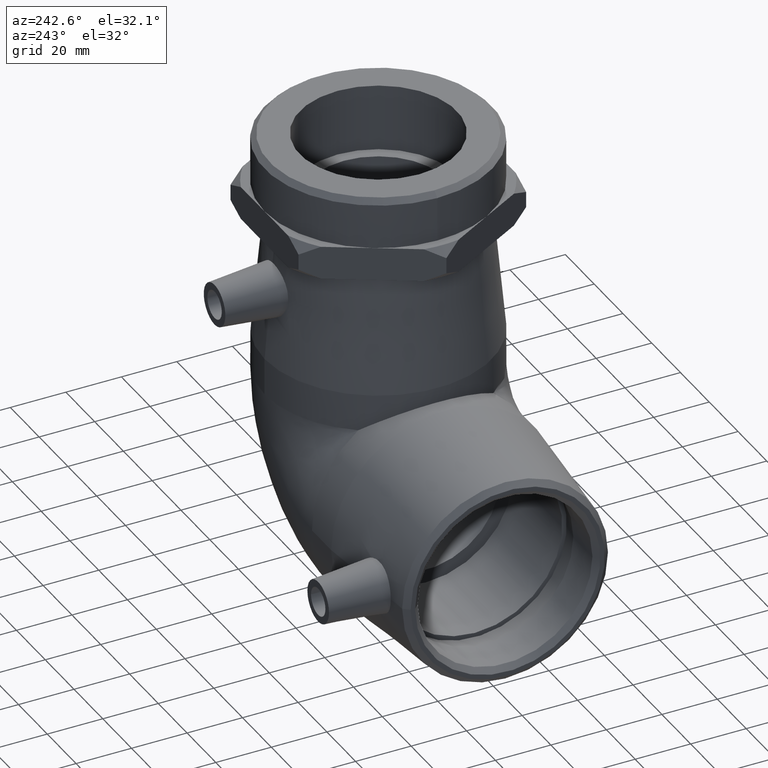
[diagram: clean part render]
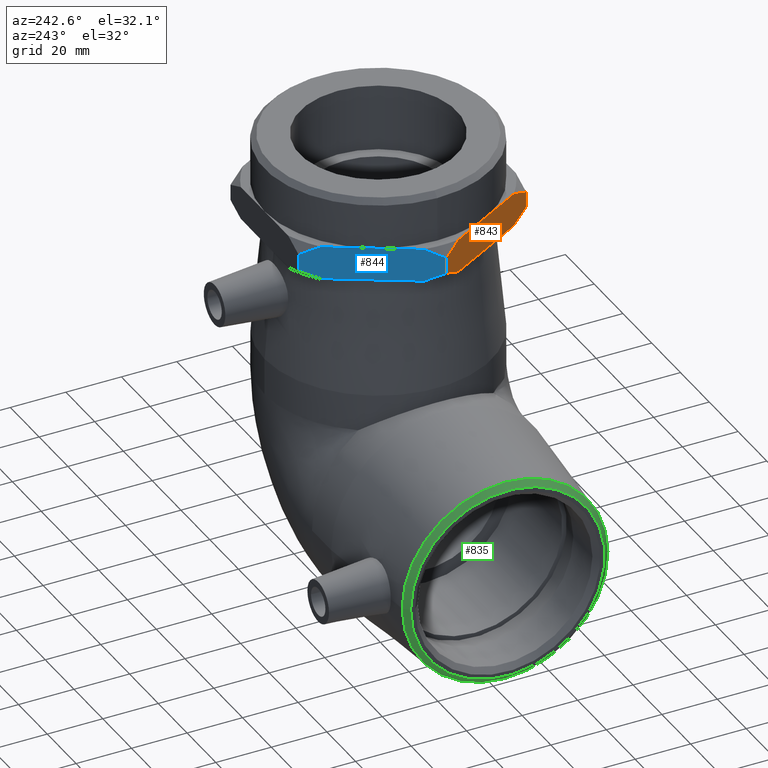
[diagram: same view with three faces highlighted in distinct colors, each labeled with its STEP entity id]
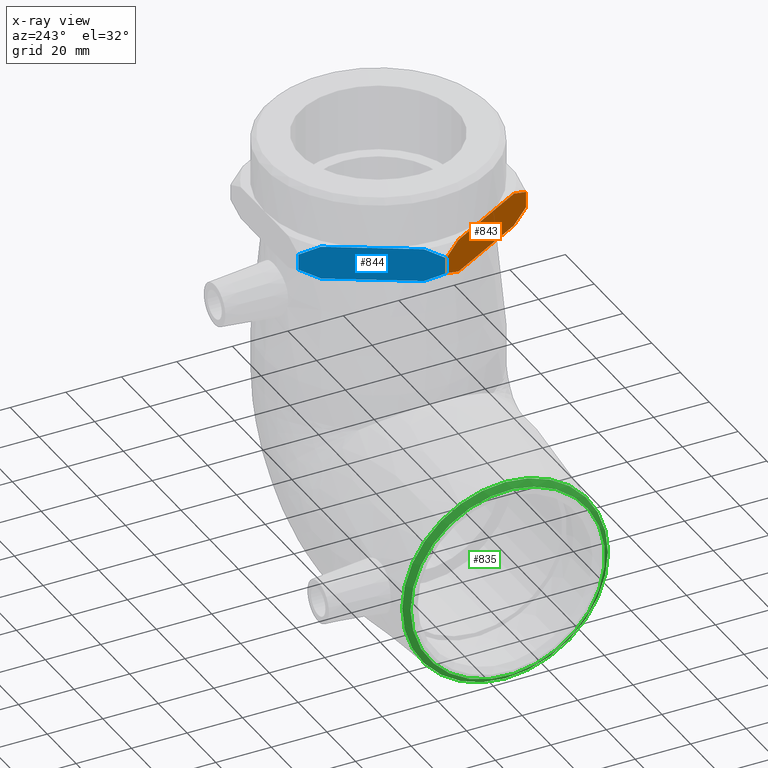
[diagram: x-ray of the same camera — body ghosted, the three highlighted faces saturated]
A machine part, auxiliary view with three faces highlighted in distinct colors.
The next image is the same camera in x-ray (body ghosted, the three faces saturated) — at least one of them is partly hidden behind the body in this view.
Their STEP definitions:

[orange] entity #843 — the highlighted planar face has unit normal (-0.8661, -0.4999, 0).
#72=LINE('',#1400,#96);
#80=LINE('',#1421,#104);
#88=LINE('',#1542,#112);
#89=LINE('',#1543,#113);
#90=LINE('',#1544,#114);
#96=VECTOR('',#1053,16.4923202465228);
#104=VECTOR('',#1077,32.9846404930455);
#112=VECTOR('',#1143,5.69999999999999);
#113=VECTOR('',#1144,5.69999999999999);
#114=VECTOR('',#1145,16.4923202465228);
#129=PLANE('',#943);
#176=FACE_OUTER_BOUND('',#254,.T.);
#254=EDGE_LOOP('',(#683,#684,#685,#686,#687,#688,#689,#690,#691));
#378=(
BOUNDED_CURVE()
B_SPLINE_CURVE(2,(#1318,#1319,#1320),.UNSPECIFIED.,.F.,.F.)
B_SPLINE_CURVE_WITH_KNOTS((3,3),(0.,0.784248755107226),.UNSPECIFIED.)
CURVE()
GEOMETRIC_REPRESENTATION_ITEM()
RATIONAL_B_SPLINE_CURVE((1.,1.00308982109676,1.))
REPRESENTATION_ITEM('')
);
#380=(
BOUNDED_CURVE()
B_SPLINE_CURVE(2,(#1328,#1329,#1330),.UNSPECIFIED.,.F.,.F.)
B_SPLINE_CURVE_WITH_KNOTS((3,3),(0.,0.784248755107227),.UNSPECIFIED.)
CURVE()
GEOMETRIC_REPRESENTATION_ITEM()
RATIONAL_B_SPLINE_CURVE((1.,1.00308982109688,1.))
REPRESENTATION_ITEM('')
);
#390=(
BOUNDED_CURVE()
B_SPLINE_CURVE(2,(#1384,#1385,#1386),.UNSPECIFIED.,.F.,.F.)
B_SPLINE_CURVE_WITH_KNOTS((3,3),(0.,0.784248755107226),.UNSPECIFIED.)
CURVE()
GEOMETRIC_REPRESENTATION_ITEM()
RATIONAL_B_SPLINE_CURVE((1.,1.00308982109699,1.))
REPRESENTATION_ITEM('')
);
#392=(
BOUNDED_CURVE()
B_SPLINE_CURVE(2,(#1394,#1395,#1396),.UNSPECIFIED.,.F.,.F.)
B_SPLINE_CURVE_WITH_KNOTS((3,3),(0.,0.784248755107225),.UNSPECIFIED.)
CURVE()
GEOMETRIC_REPRESENTATION_ITEM()
RATIONAL_B_SPLINE_CURVE((1.,1.00308982109703,1.))
REPRESENTATION_ITEM('')
);
#406=VERTEX_POINT('',#1312);
#407=VERTEX_POINT('',#1316);
#408=VERTEX_POINT('',#1322);
#410=VERTEX_POINT('',#1327);
#424=VERTEX_POINT('',#1378);
#425=VERTEX_POINT('',#1382);
#426=VERTEX_POINT('',#1388);
#428=VERTEX_POINT('',#1393);
#429=VERTEX_POINT('',#1399);
#488=EDGE_CURVE('',#406,#407,#378,.T.);
#490=EDGE_CURVE('',#410,#408,#380,.T.);
#506=EDGE_CURVE('',#424,#425,#390,.T.);
#508=EDGE_CURVE('',#428,#426,#392,.T.);
#510=EDGE_CURVE('',#410,#429,#72,.T.);
#522=EDGE_CURVE('',#425,#428,#80,.T.);
#548=EDGE_CURVE('',#424,#408,#88,.T.);
#549=EDGE_CURVE('',#426,#406,#89,.T.);
#550=EDGE_CURVE('',#429,#407,#90,.T.);
#683=ORIENTED_EDGE('',*,*,#490,.T.);
#684=ORIENTED_EDGE('',*,*,#548,.F.);
#685=ORIENTED_EDGE('',*,*,#506,.T.);
#686=ORIENTED_EDGE('',*,*,#522,.T.);
#687=ORIENTED_EDGE('',*,*,#508,.T.);
#688=ORIENTED_EDGE('',*,*,#549,.T.);
#689=ORIENTED_EDGE('',*,*,#488,.T.);
#690=ORIENTED_EDGE('',*,*,#550,.F.);
#691=ORIENTED_EDGE('',*,*,#510,.F.);
#843=ADVANCED_FACE('',(#176),#129,.T.);
#943=AXIS2_PLACEMENT_3D('',#1541,#1141,#1142);
#1053=DIRECTION('',(0.499856853516597,-0.866108033672756,0.));
#1077=DIRECTION('',(0.499856853516597,-0.866108033672756,0.));
#1141=DIRECTION('center_axis',(-0.866108033672756,-0.499856853516597,0.));
#1142=DIRECTION('ref_axis',(0.499856853516597,-0.866108033672756,0.));
#1143=DIRECTION('',(0.,0.,1.));
#1144=DIRECTION('',(0.,0.,1.));
#1145=DIRECTION('',(0.499856853516597,-0.866108033672756,0.));
#1312=CARTESIAN_POINT('',(-23.6781379807691,-40.9960858359292,98.95));
#1316=CARTESIAN_POINT('',(-27.2666300749681,-34.7782620535977,102.1));
#1318=CARTESIAN_POINT('Ctrl Pts',(-23.6781379807691,-40.9960858359292,98.95));
#1319=CARTESIAN_POINT('Ctrl Pts',(-25.5341292368517,-37.7801872721495,100.806522689417));
#1320=CARTESIAN_POINT('Ctrl Pts',(-27.2666300749681,-34.7782620535977,102.1));
#1322=CARTESIAN_POINT('',(-47.3427207803969,0.00782384756823351,98.95));
#1327=CARTESIAN_POINT('',(-43.7542286861979,-6.20999993476326,102.1));
#1328=CARTESIAN_POINT('Ctrl Pts',(-43.7542286861979,-6.20999993476323,102.1));
#1329=CARTESIAN_POINT('Ctrl Pts',(-45.4867295243143,-3.20807471621159,100.806522689417));
#1330=CARTESIAN_POINT('Ctrl Pts',(-47.3427207803969,0.00782384756824377,
98.95));
#1378=CARTESIAN_POINT('',(-47.3427207803969,0.00782384756823351,93.25));
#1382=CARTESIAN_POINT('',(-43.7542286861979,-6.20999993476326,90.1));
#1384=CARTESIAN_POINT('Ctrl Pts',(-47.3427207803969,0.00782384756822769,
93.25));
#1385=CARTESIAN_POINT('Ctrl Pts',(-45.4867295243143,-3.20807471621157,91.3934773105834));
#1386=CARTESIAN_POINT('Ctrl Pts',(-43.7542286861979,-6.20999993476325,90.1));
#1388=CARTESIAN_POINT('',(-23.6781379807691,-40.9960858359292,93.25));
#1393=CARTESIAN_POINT('',(-27.2666300749681,-34.7782620535977,90.1));
#1394=CARTESIAN_POINT('Ctrl Pts',(-27.2666300749681,-34.7782620535977,90.1));
#1395=CARTESIAN_POINT('Ctrl Pts',(-25.5341292368517,-37.7801872721494,91.3934773105834));
#1396=CARTESIAN_POINT('Ctrl Pts',(-23.6781379807691,-40.9960858359292,93.25));
#1399=CARTESIAN_POINT('',(-35.510429380583,-20.4941309941805,102.1));
#1400=CARTESIAN_POINT('',(-47.3427214268806,0.0078249677383202,102.1));
#1421=CARTESIAN_POINT('',(-47.3427214268806,0.0078249677383202,90.1));
#1541=CARTESIAN_POINT('Origin',(-47.3427214268806,0.0078249677383202,90.1));
#1542=CARTESIAN_POINT('',(-47.3427214268806,0.0078249677383202,90.1));
#1543=CARTESIAN_POINT('',(-23.6781373342855,-40.9960869560993,90.1));
#1544=CARTESIAN_POINT('',(-47.3427214268806,0.0078249677383202,102.1));

[blue] entity #844 — the highlighted planar face has unit normal (-0.8659, 0.5001, 0).
#73=LINE('',#1403,#97);
#74=LINE('',#1405,#98);
#81=LINE('',#1422,#105);
#88=LINE('',#1542,#112);
#91=LINE('',#1546,#115);
#97=VECTOR('',#1056,16.4923202465228);
#98=VECTOR('',#1059,16.4923202465228);
#105=VECTOR('',#1078,32.9846404930456);
#112=VECTOR('',#1143,5.69999999999999);
#115=VECTOR('',#1148,5.69999999999999);
#130=PLANE('',#944);
#177=FACE_OUTER_BOUND('',#255,.T.);
#255=EDGE_LOOP('',(#692,#693,#694,#695,#696,#697,#698,#699,#700));
#374=(
BOUNDED_CURVE()
B_SPLINE_CURVE(2,(#1295,#1296,#1297),.UNSPECIFIED.,.F.,.F.)
B_SPLINE_CURVE_WITH_KNOTS((3,3),(0.,0.784248755107226),.UNSPECIFIED.)
CURVE()
GEOMETRIC_REPRESENTATION_ITEM()
RATIONAL_B_SPLINE_CURVE((1.,1.0030898210964,1.))
REPRESENTATION_ITEM('')
);
#379=(
BOUNDED_CURVE()
B_SPLINE_CURVE(2,(#1324,#1325,#1326),.UNSPECIFIED.,.F.,.F.)
B_SPLINE_CURVE_WITH_KNOTS((3,3),(0.,0.784248755107227),.UNSPECIFIED.)
CURVE()
GEOMETRIC_REPRESENTATION_ITEM()
RATIONAL_B_SPLINE_CURVE((1.,1.0030898210968,1.))
REPRESENTATION_ITEM('')
);
#388=(
BOUNDED_CURVE()
B_SPLINE_CURVE(2,(#1373,#1374,#1375),.UNSPECIFIED.,.F.,.F.)
B_SPLINE_CURVE_WITH_KNOTS((3,3),(0.,0.784248755107225),.UNSPECIFIED.)
CURVE()
GEOMETRIC_REPRESENTATION_ITEM()
RATIONAL_B_SPLINE_CURVE((1.,1.0030898210969,1.))
REPRESENTATION_ITEM('')
);
#389=(
BOUNDED_CURVE()
B_SPLINE_CURVE(2,(#1379,#1380,#1381),.UNSPECIFIED.,.F.,.F.)
B_SPLINE_CURVE_WITH_KNOTS((3,3),(0.,0.784248755107224),.UNSPECIFIED.)
CURVE()
GEOMETRIC_REPRESENTATION_ITEM()
RATIONAL_B_SPLINE_CURVE((1.,1.00308982109691,1.))
REPRESENTATION_ITEM('')
);
#399=VERTEX_POINT('',#1289);
#401=VERTEX_POINT('',#1294);
#408=VERTEX_POINT('',#1322);
#409=VERTEX_POINT('',#1323);
#421=VERTEX_POINT('',#1367);
#422=VERTEX_POINT('',#1371);
#423=VERTEX_POINT('',#1377);
#424=VERTEX_POINT('',#1378);
#430=VERTEX_POINT('',#1401);
#481=EDGE_CURVE('',#401,#399,#374,.T.);
#489=EDGE_CURVE('',#408,#409,#379,.T.);
#503=EDGE_CURVE('',#421,#422,#388,.T.);
#504=EDGE_CURVE('',#423,#424,#389,.T.);
#512=EDGE_CURVE('',#430,#409,#73,.T.);
#513=EDGE_CURVE('',#401,#430,#74,.T.);
#523=EDGE_CURVE('',#422,#423,#81,.T.);
#548=EDGE_CURVE('',#424,#408,#88,.T.);
#551=EDGE_CURVE('',#421,#399,#91,.T.);
#692=ORIENTED_EDGE('',*,*,#489,.T.);
#693=ORIENTED_EDGE('',*,*,#512,.F.);
#694=ORIENTED_EDGE('',*,*,#513,.F.);
#695=ORIENTED_EDGE('',*,*,#481,.T.);
#696=ORIENTED_EDGE('',*,*,#551,.F.);
#697=ORIENTED_EDGE('',*,*,#503,.T.);
#698=ORIENTED_EDGE('',*,*,#523,.T.);
#699=ORIENTED_EDGE('',*,*,#504,.T.);
#700=ORIENTED_EDGE('',*,*,#548,.T.);
#844=ADVANCED_FACE('',(#177),#130,.T.);
#944=AXIS2_PLACEMENT_3D('',#1545,#1146,#1147);
#1056=DIRECTION('',(-0.500143132824096,-0.865942750237508,0.));
#1059=DIRECTION('',(-0.500143132824096,-0.865942750237508,0.));
#1078=DIRECTION('',(-0.500143132824096,-0.865942750237508,0.));
#1143=DIRECTION('',(0.,0.,1.));
#1146=DIRECTION('center_axis',(-0.865942750237508,0.500143132824096,0.));
#1147=DIRECTION('ref_axis',(-0.500143132824096,-0.865942750237508,0.));
#1148=DIRECTION('',(0.,0.,1.));
#1289=CARTESIAN_POINT('',(-23.664584739449,41.0039108038813,98.95));
#1294=CARTESIAN_POINT('',(-27.2551320441036,34.7872735978596,102.1));
#1295=CARTESIAN_POINT('Ctrl Pts',(-27.2551320441036,34.7872735978597,102.1));
#1296=CARTESIAN_POINT('Ctrl Pts',(-25.5216389636349,37.7886259450221,100.806522689417));
#1297=CARTESIAN_POINT('Ctrl Pts',(-23.664584739449,41.0039108038813,98.95));
#1322=CARTESIAN_POINT('',(-47.3427207803969,0.00782384756823351,98.95));
#1323=CARTESIAN_POINT('',(-43.752173475372,6.22446329371628,102.1));
#1324=CARTESIAN_POINT('Ctrl Pts',(-47.3427207800266,0.00782608769461677,
98.95));
#1325=CARTESIAN_POINT('Ctrl Pts',(-45.4856665558408,3.22311094655374,100.806522689417));
#1326=CARTESIAN_POINT('Ctrl Pts',(-43.752173475372,6.22446329371626,102.1));
#1367=CARTESIAN_POINT('',(-23.664584739449,41.0039108038813,93.25));
#1371=CARTESIAN_POINT('',(-27.2551320441036,34.7872735978596,90.1));
#1373=CARTESIAN_POINT('Ctrl Pts',(-23.664584739449,41.0039108038813,93.25));
#1374=CARTESIAN_POINT('Ctrl Pts',(-25.5216389636349,37.7886259450221,91.3934773105834));
#1375=CARTESIAN_POINT('Ctrl Pts',(-27.2551320441036,34.7872735978596,90.1));
#1377=CARTESIAN_POINT('',(-43.752173475372,6.22446329371628,90.1));
#1378=CARTESIAN_POINT('',(-47.3427207803969,0.00782384756823351,93.25));
#1379=CARTESIAN_POINT('Ctrl Pts',(-43.752173475372,6.22446329371627,90.1));
#1380=CARTESIAN_POINT('Ctrl Pts',(-45.4856665558407,3.22311094655382,91.3934773105834));
#1381=CARTESIAN_POINT('Ctrl Pts',(-47.3427207800266,0.00782608769464893,
93.25));
#1401=CARTESIAN_POINT('',(-35.5036527597378,20.505868445788,102.1));
#1403=CARTESIAN_POINT('',(-23.6645840925951,41.0039119238376,102.1));
#1405=CARTESIAN_POINT('',(-23.6645840925951,41.0039119238376,102.1));
#1422=CARTESIAN_POINT('',(-23.6645840925951,41.0039119238376,90.1));
#1542=CARTESIAN_POINT('',(-47.3427214268806,0.0078249677383202,90.1));
#1545=CARTESIAN_POINT('Origin',(-23.6645840925951,41.0039119238376,90.1));
#1546=CARTESIAN_POINT('',(-23.6645840925951,41.0039119238376,90.1));

[green] entity #835 — the highlighted conical surface has half-angle 47.682 deg.
#37=FACE_BOUND('',#237,.T.);
#168=FACE_OUTER_BOUND('',#236,.T.);
#236=EDGE_LOOP('',(#660));
#237=EDGE_LOOP('',(#661));
#333=CIRCLE('',#921,35.01);
#335=CIRCLE('',#925,37.0766809217875);
#438=VERTEX_POINT('',#1438);
#440=VERTEX_POINT('',#1444);
#533=EDGE_CURVE('',#438,#438,#333,.T.);
#535=EDGE_CURVE('',#440,#440,#335,.T.);
#660=ORIENTED_EDGE('',*,*,#533,.T.);
#661=ORIENTED_EDGE('',*,*,#535,.T.);
#805=CONICAL_SURFACE('',#924,36.0433404608937,47.6819771088471);
#835=ADVANCED_FACE('',(#168,#37),#805,.T.);
#921=AXIS2_PLACEMENT_3D('',#1439,#1097,#1098);
#924=AXIS2_PLACEMENT_3D('',#1443,#1103,#1104);
#925=AXIS2_PLACEMENT_3D('',#1445,#1105,#1106);
#1097=DIRECTION('center_axis',(1.,-1.5419764230905E-18,0.));
#1098=DIRECTION('ref_axis',(-1.5419764230905E-18,-1.,0.));
#1103=DIRECTION('center_axis',(1.,-2.30285802128273E-33,-1.20649594030909E-15));
#1104=DIRECTION('ref_axis',(-7.48884452468693E-19,-1.,-3.14939167910499E-17));
#1105=DIRECTION('center_axis',(-1.,0.,0.));
#1106=DIRECTION('ref_axis',(0.,-1.,-6.12323399573677E-17));
#1438=CARTESIAN_POINT('',(-90.,35.01,4.28748844381488E-15));
#1439=CARTESIAN_POINT('Origin',(-90.,4.33334237487128E-33,0.));
#1443=CARTESIAN_POINT('Origin',(-89.0591381807252,2.16667118743564E-33,
-1.13514596534687E-15));
#1444=CARTESIAN_POINT('',(-88.1182763614504,37.0766809217875,-4.54058386138748E-15));
#1445=CARTESIAN_POINT('Origin',(-88.1182763614504,0.,-2.27029193069374E-15));